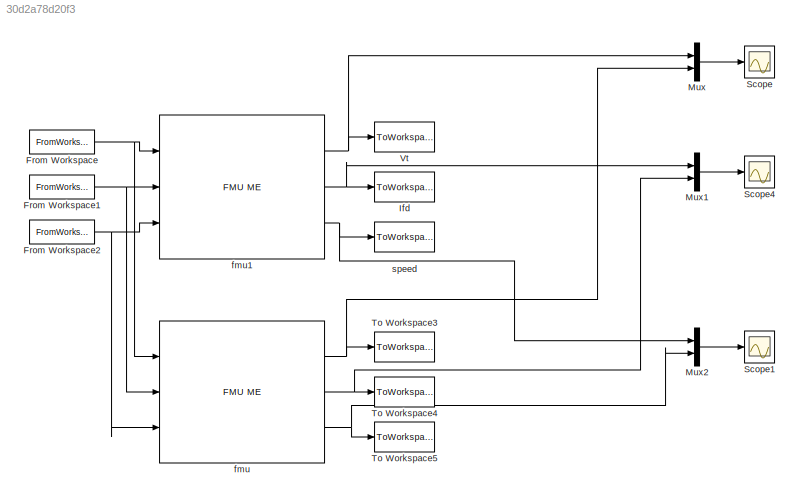
MODEL slx_30d2a78d20f3
KIND model
CONFIG AbsTol = auto
CONFIG EnableMultiTasking = on
CONFIG FixedStep = 0.01
CONFIG MaxStep = auto
CONFIG MinStep = auto
CONFIG RelTol = 0.001
CONFIG SampleTimeConstraint = Unconstrained
CONFIG Solver = FixedStepAuto
CONFIG SolverName = FixedStepAuto
CONFIG StartTime = 0
CONFIG StopTime = 10
BLOCK [FromWorkspace] From Workspace
  VariableName = [t,Pn]
BLOCK [FromWorkspace] From Workspace1
  VariableName = [t,Q]
BLOCK [FromWorkspace] From Workspace2
  VariableName = [t,Efd]
BLOCK [ToWorkspace] Ifd
  MaxDataPoints = inf
  Ports = [1]
  SampleTime = 0.005
  SaveFormat = Structure With Time
  VariableName = XadIfd
BLOCK [Mux] Mux
  DisplayOption = bar
  Inputs = 2
  Ports = [2, 1]
BLOCK [Mux] Mux1
  DisplayOption = bar
  Inputs = 2
  Ports = [2, 1]
BLOCK [Mux] Mux2
  DisplayOption = bar
  Inputs = 2
  Ports = [2, 1]
BLOCK [Scope] Scope
  Floating = off
  NumInputPorts = 1
  Ports = [1]
  ScopeSpecificationString = Simulink.scopes.TimeScopeBlockCfg('CurrentConfiguration', extmgr.ConfigurationSet(extmgr.Configuration('Core','General UI',true,'FigureColor',[1 1 1]),extmgr.Configuration('Core','Source UI',true),extmgr.Configuration('Sources','WiredSimulink',true),extmgr.Configuration('Visuals','Time Domain',true,'SerializedDisplays',{struct('MinYLimReal','0.97449','MaxYLimReal','1.05702','YLabelReal','','MinYLi...<+1424ch>
BLOCK [Scope] Scope1
  Floating = off
  NumInputPorts = 1
  Ports = [1]
  ScopeSpecificationString = Simulink.scopes.TimeScopeBlockCfg('CurrentConfiguration', extmgr.ConfigurationSet(extmgr.Configuration('Core','General UI',true,'FigureColor',[1 1 1]),extmgr.Configuration('Core','Source UI',true),extmgr.Configuration('Sources','WiredSimulink',true,'DataLoggingVariableName','ScopeData1'),extmgr.Configuration('Visuals','Time Domain',true,'SerializedDisplays',{struct('MinYLimReal','-0.00144','MaxYLi...<+1465ch>
BLOCK [Scope] Scope4
  Floating = off
  NumInputPorts = 1
  Ports = [1]
  ScopeSpecificationString = Simulink.scopes.TimeScopeBlockCfg('CurrentConfiguration', extmgr.ConfigurationSet(extmgr.Configuration('Core','General UI',true,'FigureColor',[1 1 1]),extmgr.Configuration('Core','Source UI',true),extmgr.Configuration('Sources','WiredSimulink',true,'DataLoggingVariableName','ScopeData4'),extmgr.Configuration('Visuals','Time Domain',true,'SerializedDisplays',{struct('MinYLimReal','1.20735','MaxYLim...<+1437ch>
BLOCK [ToWorkspace] To Workspace3
  MaxDataPoints = inf
  Ports = [1]
  SampleTime = 0.005
  SaveFormat = Structure With Time
  VariableName = Vt_degraded
BLOCK [ToWorkspace] To Workspace4
  MaxDataPoints = inf
  Ports = [1]
  SampleTime = 0.005
  SaveFormat = Structure With Time
  VariableName = XadIfd_degraded
BLOCK [ToWorkspace] To Workspace5
  MaxDataPoints = inf
  Ports = [1]
  SampleTime = 0.005
  SaveFormat = Structure With Time
  VariableName = speed_degraded
BLOCK [ToWorkspace] Vt
  MaxDataPoints = inf
  Ports = [1]
  SampleTime = 0.005
  SaveFormat = Structure With Time
  VariableName = Vt
BLOCK [Reference] fmu  REF=fmu_me_lib/FMU ME
  Description = Simulates an FMU for Model Exchange 1.0 or Model Exchange 2.0.
  Ports = [3, 3]
  SourceBlock = fmu_me_lib/FMU ME
  UserDataPersistent = on
BLOCK [Reference] fmu1  REF=fmu_me_lib/FMU ME
  Description = Simulates an FMU for Model Exchange 1.0 or Model Exchange 2.0.
  Ports = [3, 3]
  SourceBlock = fmu_me_lib/FMU ME
  UserDataPersistent = on
BLOCK [ToWorkspace] speed
  MaxDataPoints = inf
  Ports = [1]
  SampleTime = 0.005
  SaveFormat = Structure With Time
  VariableName = speed
NET From Workspace1:1 -> fmu1:2, fmu:2
NET From Workspace2:1 -> fmu1:3, fmu:3
NET From Workspace:1 -> fmu1:1, fmu:1
LINE Mux1:1 -> Scope4:1
LINE Mux2:1 -> Scope1:1
LINE Mux:1 -> Scope:1
NET fmu1:1 -> Mux:1, Vt:1
NET fmu1:2 -> Ifd:1, Mux1:1
NET fmu1:3 -> Mux2:1, speed:1
NET fmu:1 -> Mux:2, To Workspace3:1
NET fmu:2 -> Mux1:2, To Workspace4:1
NET fmu:3 -> Mux2:2, To Workspace5:1
note: NET lines group one-source signal fan-out (src -> all destinations, sorted); 1:1 wires keep LINE
